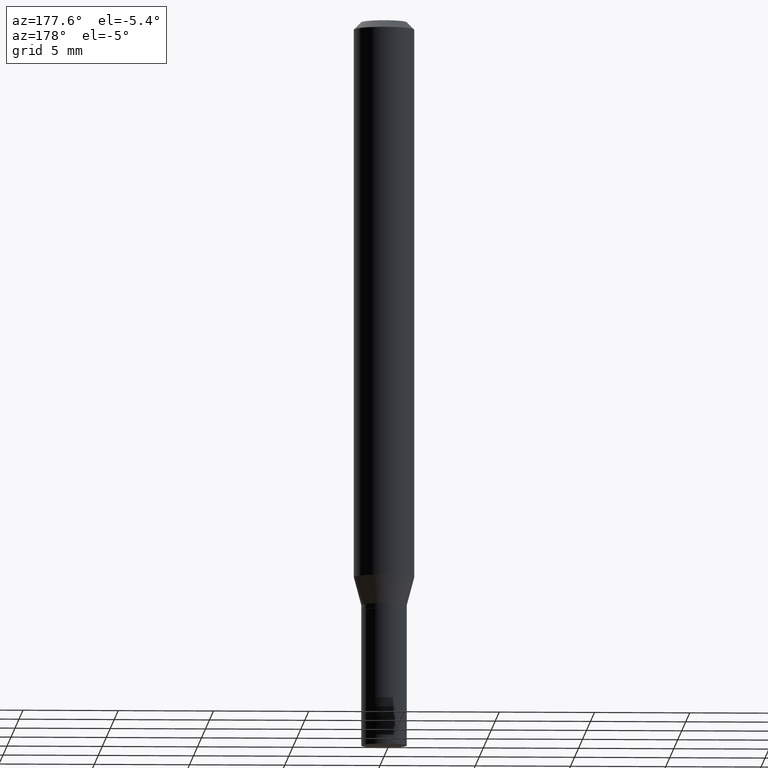
[diagram: clean part render]
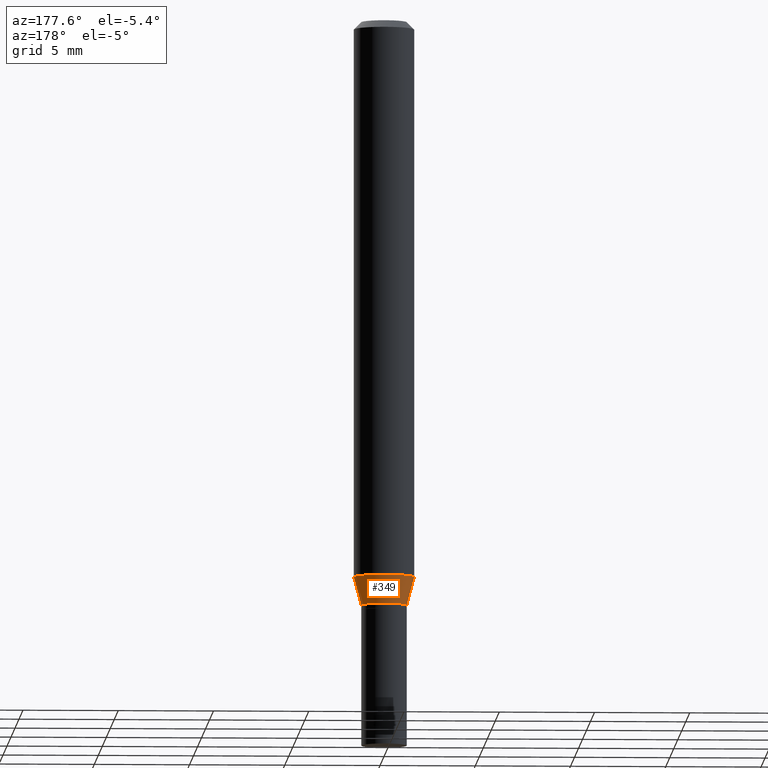
[diagram: same view with one face highlighted and labeled with its STEP entity id]
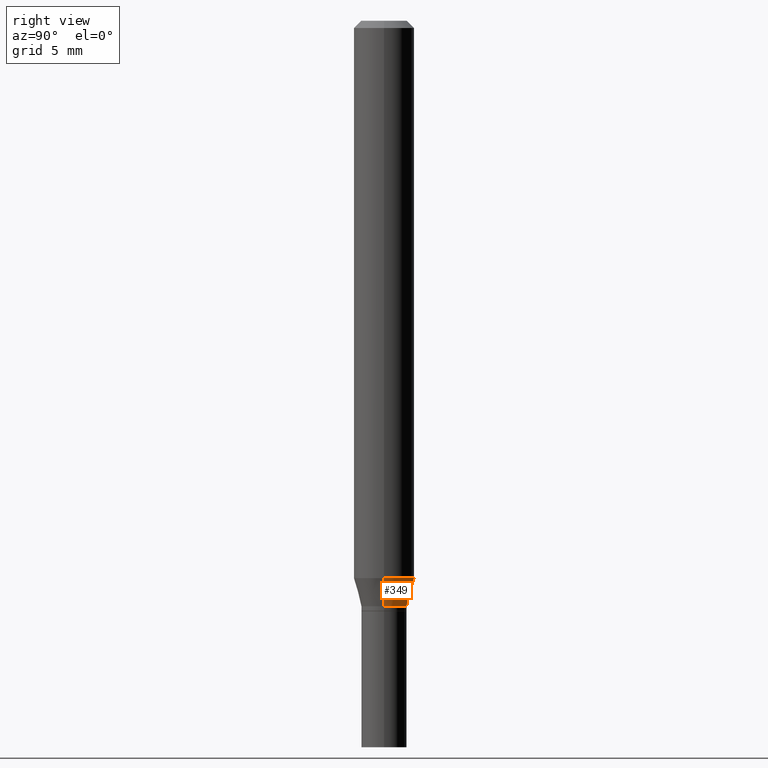
[diagram: same view with one face highlighted and labeled with its STEP entity id]
A machine part, auxiliary view. The second image highlights one B-rep face of the part: STEP entity #349.
A second angle (right view) of the same face is appended — the face is thin or edge-on in the first view.
In plain terms, the highlighted conical surface has half-angle 15 deg.
Its self-contained STEP definition (entity closure, byte-faithful):
#2 = EDGE_CURVE ( 'NONE', #229, #205, #67, .T. ) ;
#10 = EDGE_CURVE ( 'NONE', #205, #209, #385, .T. ) ;
#12 = CARTESIAN_POINT ( 'NONE',  ( 0.04689999999999994174, -4.548701888244848770E-15, -1.209000000000000075 ) ) ;
#22 = CARTESIAN_POINT ( 'NONE',  ( 2.814196610882909100E-29, -4.017926920957599786E-15, -1.150780007401925431 ) ) ;
#31 = ORIENTED_EDGE ( 'NONE', *, *, #435, .T. ) ;
#38 = DIRECTION ( 'NONE',  ( 1.000000000000000000, -6.982962677686262766E-15, 0.000000000000000000 ) ) ;
#54 = AXIS2_PLACEMENT_3D ( 'NONE', #22, #165, #38 ) ;
#67 = LINE ( 'NONE', #379, #215 ) ;
#87 = ORIENTED_EDGE ( 'NONE', *, *, #2, .F. ) ;
#118 = VECTOR ( 'NONE', #286, 39.37007874015748854 ) ;
#138 = EDGE_CURVE ( 'NONE', #242, #209, #322, .T. ) ;
#146 = CARTESIAN_POINT ( 'NONE',  ( -0.04689999999999994174, -3.887956395589876295E-15, -1.209000000000000075 ) ) ;
#153 = DIRECTION ( 'NONE',  ( -2.445468806185136597E-29, 3.491481338843145583E-15, 1.000000000000000000 ) ) ;
#154 = EDGE_LOOP ( 'NONE', ( #31, #382, #416, #87 ) ) ;
#165 = DIRECTION ( 'NONE',  ( -2.445468806185136597E-29, 3.491481338843145583E-15, 1.000000000000000000 ) ) ;
#189 = FACE_OUTER_BOUND ( 'NONE', #154, .T. ) ;
#199 = CONICAL_SURFACE ( 'NONE', #465, 0.04689999999999994174, 0.2617993877991499074 ) ;
#204 = DIRECTION ( 'NONE',  ( -2.445468806185136597E-29, 3.491481338843145583E-15, 1.000000000000000000 ) ) ;
#205 = VERTEX_POINT ( 'NONE', #366 ) ;
#209 = VERTEX_POINT ( 'NONE', #330 ) ;
#215 = VECTOR ( 'NONE', #342, 39.37007874015748854 ) ;
#229 = VERTEX_POINT ( 'NONE', #12 ) ;
#231 = CIRCLE ( 'NONE', #371, 0.04689999999999994174 ) ;
#235 = DIRECTION ( 'NONE',  ( 1.000000000000000000, -6.982962677686275388E-15, 0.000000000000000000 ) ) ;
#242 = VERTEX_POINT ( 'NONE', #266 ) ;
#266 = CARTESIAN_POINT ( 'NONE',  ( -0.04689999999999994174, -3.730897053348706338E-15, -1.209000000000000075 ) ) ;
#286 = DIRECTION ( 'NONE',  ( -0.2588190451025211836, 5.211531920934547886E-15, 0.9659258262890679791 ) ) ;
#295 = DIRECTION ( 'NONE',  ( 1.000000000000000000, -6.982962677686275388E-15, 0.000000000000000000 ) ) ;
#322 = LINE ( 'NONE', #146, #118 ) ;
#330 = CARTESIAN_POINT ( 'NONE',  ( -0.06250000000000000000, -3.573837711107537170E-15, -1.150780007401925431 ) ) ;
#340 = CARTESIAN_POINT ( 'NONE',  ( 2.956571786677830083E-29, -4.221200938661362868E-15, -1.209000000000000075 ) ) ;
#342 = DIRECTION ( 'NONE',  ( 0.2588190451025211836, 1.565188264969622559E-15, 0.9659258262890679791 ) ) ;
#349 = ADVANCED_FACE ( 'NONE', ( #189 ), #199, .T. ) ;
#366 = CARTESIAN_POINT ( 'NONE',  ( 0.06250000000000000000, -4.454362088312991456E-15, -1.150780007401925431 ) ) ;
#371 = AXIS2_PLACEMENT_3D ( 'NONE', #340, #204, #235 ) ;
#379 = CARTESIAN_POINT ( 'NONE',  ( 0.04689999999999994174, -4.548701888244848770E-15, -1.209000000000000075 ) ) ;
#382 = ORIENTED_EDGE ( 'NONE', *, *, #138, .T. ) ;
#385 = CIRCLE ( 'NONE', #54, 0.06250000000000000000 ) ;
#416 = ORIENTED_EDGE ( 'NONE', *, *, #10, .F. ) ;
#435 = EDGE_CURVE ( 'NONE', #229, #242, #231, .T. ) ;
#446 = CARTESIAN_POINT ( 'NONE',  ( 2.956571786677830083E-29, -4.221200938661362868E-15, -1.209000000000000075 ) ) ;
#465 = AXIS2_PLACEMENT_3D ( 'NONE', #446, #153, #295 ) ;